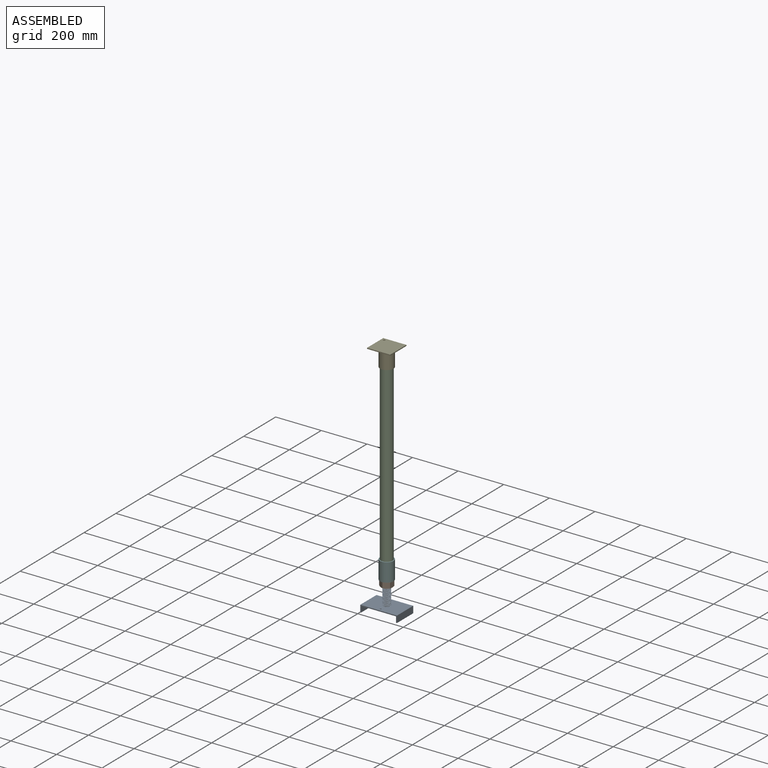
[diagram: assembled view]
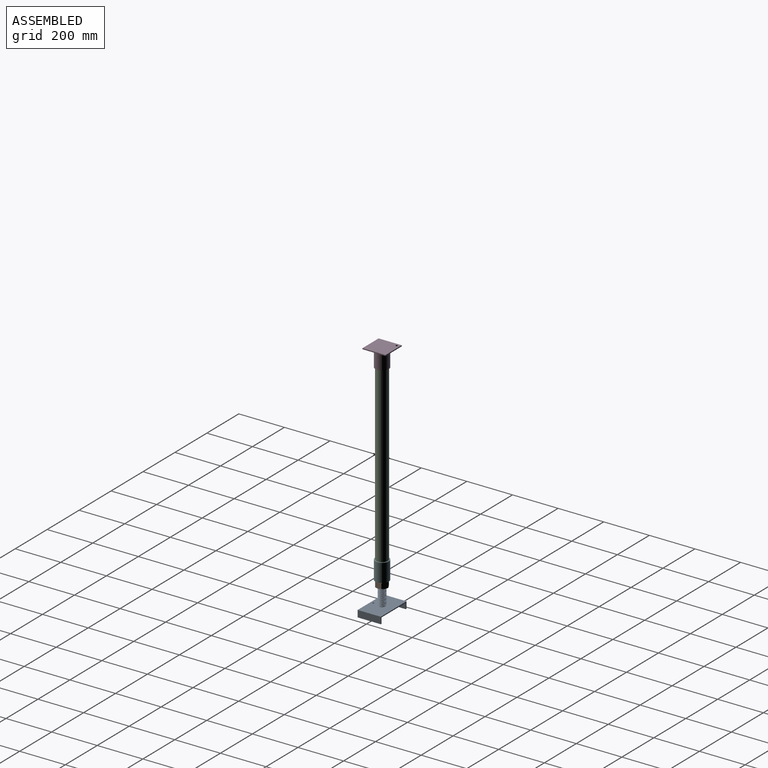
[diagram: assembled view, second angle]
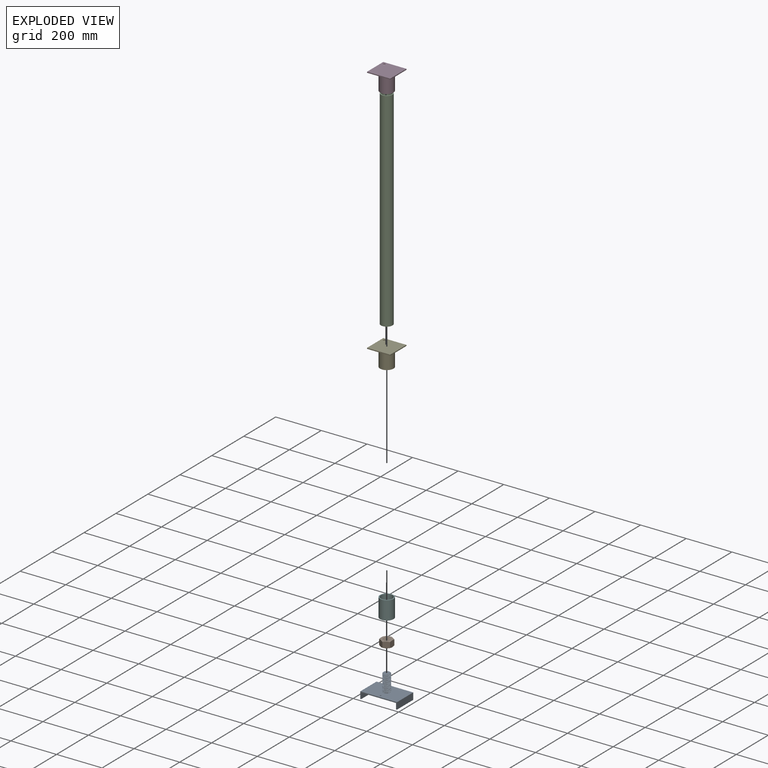
[diagram: exploded view]
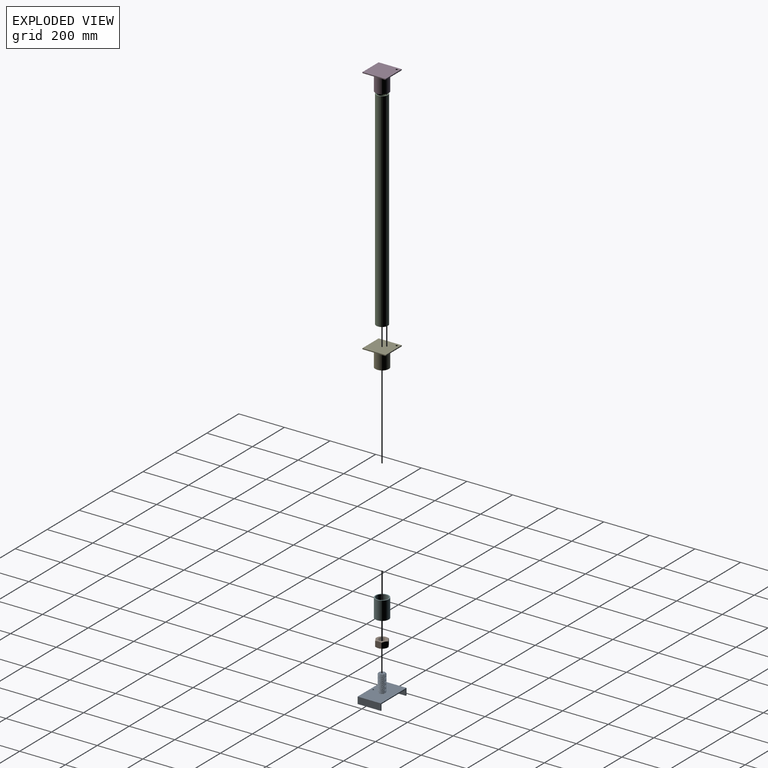
[diagram: exploded view, second angle]
ASSEMBLY  parts=6 mates=4
PART A: 19 faces, bbox 106.8x101.6x160.8 mm
  f0: plane 152.4x101.6mm, normal (-1,0,0), area 15452.2mm2, adj f9,f11,f14,f16,f18
  f1: cylinder r=15.88mm len=71.44mm, axis (1,0,0), area 827.1mm2, adj f3,f4,f6,f8
  f2: cone r=15.88mm half-angle=45deg, axis (1,0,0), area 164.2mm2, adj f3,f6,f7,f8,f13
  f3: cone r=15.88mm half-angle=45deg, axis (1,0,0), area 8.1mm2, adj f1,f2,f6
  f4: cone r=13.49mm half-angle=45deg, axis (-1,0,0), area 172.3mm2, adj f1,f5,f6,f7,f8
  f5: plane 26.99x26.99mm, normal (1,0,0), area 572mm2, adj f4
  f6: bspline ~76.96x32.09mm, area 5140mm2, adj f1,f2,f3,f4,f7
  f7: cylinder r=13.81mm len=75.56mm, axis (1,0,0), area 1583.5mm2, adj f2,f4,f6,f8
  f8: bspline ~77.23x32.09mm, area 5149.7mm2, adj f1,f2,f4,f7
  f9: plane 160.78x29.59mm, normal (0,1,0), area 886.7mm2, adj f0,f10,f12,f13,f14,f15,f16,f17
  f10: plane 101.6x29.59mm, normal (0,0,-1), area 3006.4mm2, adj f9,f11,f13,f17
  f11: plane 160.78x29.59mm, normal (0,-1,0), area 886.7mm2, adj f0,f10,f12,f13,f14,f15,f16,f17
  f12: plane 101.6x29.59mm, normal (0,0,1), area 3006.4mm2, adj f9,f11,f13,f15
  f13: plane 160.78x101.6mm, normal (1,0,0), area 15731.8mm2, adj f2,f9,f10,f11,f12,f18
  f14: plane 101.6x25.4mm, normal (0,0,-1), area 2580.6mm2, adj f0,f9,f11,f15
  f15: plane 101.6x4.19mm, normal (-1,0,0), area 425.8mm2, adj f9,f11,f12,f14
  f16: plane 101.6x25.4mm, normal (0,0,1), area 2580.6mm2, adj f0,f9,f11,f17
  f17: plane 101.6x4.19mm, normal (-1,0,0), area 425.8mm2, adj f9,f10,f11,f16
  f18: cylinder r=3.17mm len=6.35mm, axis (-1,0,0), area 83.6mm2, adj f0,f13
PART B: 26 faces, bbox 57.3x57.3x32.1 mm
  f0: plane 47.63x47.63mm, normal (0,0,1), area 989.7mm2, adj f8,f12,f13,f14,f15,f16,f17,f18
  f1: plane 29.26x26.07mm, normal (-0.5,0.87,0), area 701.9mm2, adj f2,f6,f13,f18,f21,f22
  f2: plane 29.78x29.27mm, normal (-1,0,0), area 701.9mm2, adj f1,f3,f17,f18,f22,f23
  f3: plane 29.26x26.07mm, normal (-0.5,-0.87,0), area 701.9mm2, adj f2,f4,f16,f17,f23,f24
  f4: plane 29.26x26.07mm, normal (0.5,-0.87,0), area 701.9mm2, adj f3,f5,f15,f16,f24,f25
  f5: plane 29.78x29.27mm, normal (1,0,0), area 701.9mm2, adj f4,f6,f14,f15,f20,f25
  f6: plane 29.26x26.07mm, normal (0.5,0.87,0), area 701.9mm2, adj f1,f5,f13,f14,f20,f21
  f7: plane 47.63x47.63mm, normal (0,0,-1), area 989.7mm2, adj f8,f19,f20,f21,f22,f23,f24,f25
  f8: cylinder r=15.88mm len=31.75mm, axis (0,0,-1), area 243mm2, adj f0,f7,f9,f11
  f9: bspline ~31.75x31.75mm, area 1711.6mm2, adj f8,f10,f12,f19
  f10: cylinder r=13.52mm len=27.04mm, axis (0,0,1), area 28.5mm2, adj f9,f11,f12,f19
  f11: bspline ~31.73x31.73mm, area 1711.1mm2, adj f8,f10,f12,f19
  f12: cone r=14.97mm half-angle=45deg, axis (0,0,1), area 156.9mm2, adj f0,f9,f10,f11
  f13: cone r=23.81mm half-angle=60deg, axis (0,0,-1), area 55.8mm2, adj f0,f1,f6
  f14: cone r=23.81mm half-angle=60deg, axis (0,0,-1), area 55.8mm2, adj f0,f5,f6
  f15: cone r=23.81mm half-angle=60deg, axis (0,0,-1), area 55.8mm2, adj f0,f4,f5
  f16: cone r=23.81mm half-angle=60deg, axis (0,0,-1), area 55.8mm2, adj f0,f3,f4
  f17: cone r=23.81mm half-angle=60deg, axis (0,0,-1), area 55.8mm2, adj f0,f2,f3
  f18: cone r=23.81mm half-angle=60deg, axis (0,0,-1), area 55.8mm2, adj f0,f1,f2
  f19: cone r=14.97mm half-angle=45deg, axis (0,0,-1), area 156.9mm2, adj f7,f9,f10,f11
  f20: cone r=23.81mm half-angle=60deg, axis (0,0,1), area 55.8mm2, adj f5,f6,f7
  f21: cone r=23.81mm half-angle=60deg, axis (0,0,1), area 55.8mm2, adj f1,f6,f7
  f22: cone r=23.81mm half-angle=60deg, axis (0,0,1), area 55.8mm2, adj f1,f2,f7
  f23: cone r=23.81mm half-angle=60deg, axis (0,0,1), area 55.8mm2, adj f2,f3,f7
  f24: cone r=23.81mm half-angle=60deg, axis (0,0,1), area 55.8mm2, adj f3,f4,f7
  f25: cone r=23.81mm half-angle=60deg, axis (0,0,1), area 55.8mm2, adj f4,f5,f7
PART C: 4 faces, bbox 50.8x50.8x914.4 mm
  f0: cylinder r=25.4mm len=914.4mm, axis (0,0,-1), area 145931.8mm2, adj f1,f2
  f1: plane 50.8x50.8mm, normal (0,0,1), area 613.7mm2, adj f0,f3
  f2: plane 50.8x50.8mm, normal (0,0,-1), area 613.7mm2, adj f0,f3
  f3: cylinder r=21.21mm len=914.4mm, axis (0,0,1), area 121853mm2, adj f1,f2
PART D: 11 faces, bbox 101.6x101.6x80.4 mm
  f0: cylinder r=29.59mm len=76.2mm, axis (0,0,-1), area 14167.5mm2, adj f1,f3
  f1: plane 59.18x59.18mm, normal (0,0,-1), area 724mm2, adj f0,f2
  f2: cylinder r=25.4mm len=76.2mm, axis (0,0,1), area 12161mm2, adj f1,f9
  f3: plane 101.6x101.6mm, normal (0,0,-1), area 7500.4mm2, adj f0,f5,f6,f7,f8,f10
  f4: plane 101.6x101.6mm, normal (0,0,1), area 10251.3mm2, adj f5,f6,f7,f8,f10
  f5: plane 101.6x4.19mm, normal (1,0,0), area 425.8mm2, adj f3,f4,f6,f8
  f6: plane 101.6x4.19mm, normal (0,-1,0), area 425.8mm2, adj f3,f4,f5,f7
  f7: plane 101.6x4.19mm, normal (-1,0,0), area 425.8mm2, adj f3,f4,f6,f8
  f8: plane 101.6x4.19mm, normal (0,1,0), area 425.8mm2, adj f3,f4,f5,f7
  f9: plane 50.8x50.8mm, normal (0,0,-1), area 2026.8mm2, adj f2
  f10: cylinder r=4.76mm len=9.53mm, axis (0,0,-1), area 125.4mm2, adj f3,f4
PART E: same geometry as D
PART F: 8 faces, bbox 59.2x59.2x80.4 mm
  f0: cylinder r=25.4mm len=76.2mm, axis (0,0,-1), area 12161mm2, adj f2,f3
  f1: cylinder r=29.59mm len=80.39mm, axis (0,0,-1), area 14946.8mm2, adj f2,f4
  f2: plane 59.18x59.18mm, normal (0,0,-1), area 724mm2, adj f0,f1
  f3: plane 50.8x50.8mm, normal (0,0,-1), area 749mm2, adj f0,f6
  f4: plane 59.18x59.18mm, normal (0,0,1), area 1959.1mm2, adj f1,f5
  f5: cylinder r=15.88mm len=54.99mm, axis (0,0,1), area 5485.1mm2, adj f4,f7
  f6: cylinder r=20.17mm len=50.8mm, axis (0,0,1), area 6437.2mm2, adj f3,f7
  f7: plane 40.34x40.34mm, normal (0,0,-1), area 486.1mm2, adj f5,f6
PLACE A rot(axis=(0.71,0,0.71),180deg) t=(123.05,234.97,-701.79)mm
PLACE B rot(axis=(1,0,0),180deg) t=(123.05,234.97,-650.19)mm fixed
PLACE C rot(axis=(1,0,0),180deg) t=(123.05,234.97,281.89)mm fixed
PLACE D t=(123.05,234.97,205.69)mm
PLACE E t=(123.05,234.97,205.69)mm
PLACE F rot(axis=(1,0,0),180deg) t=(123.05,234.97,-556.31)mm
MATE revolute B.f8 <-> A.f1  axis (0,0,-1) through (123.05,234.97,-663.69)mm
MATE fastened C.f0 <-> D.f2  axis (0,0,1) through (123.05,234.97,281.89)mm
MATE fastened F.f5 <-> B.f8  axis (0,0,-1) through (123.05,234.97,-636.7)mm
MATE fastened C.f0 <-> F.f0  axis (0,0,-1) through (123.05,234.97,-632.51)mm
